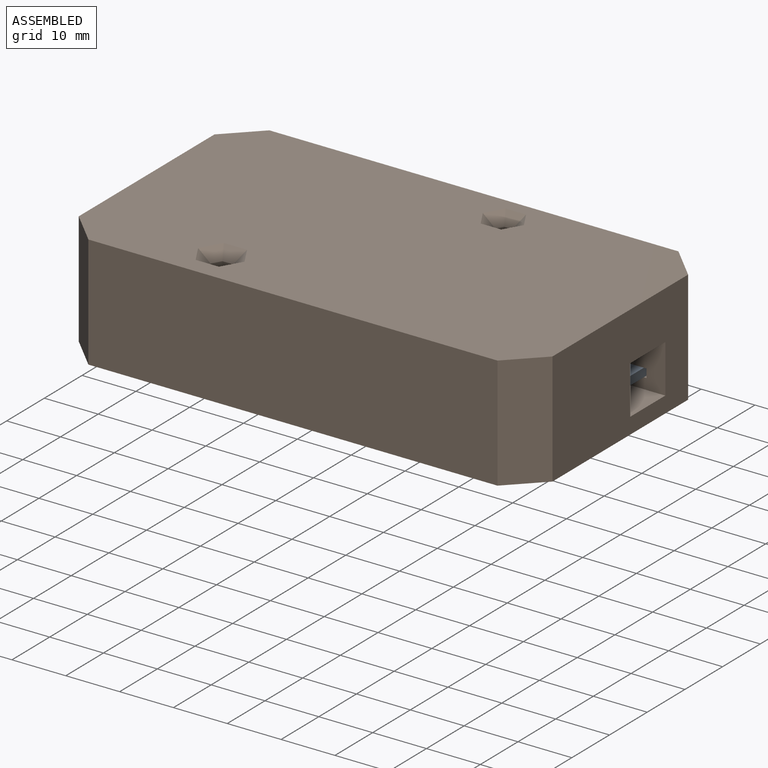
[diagram: assembled view]
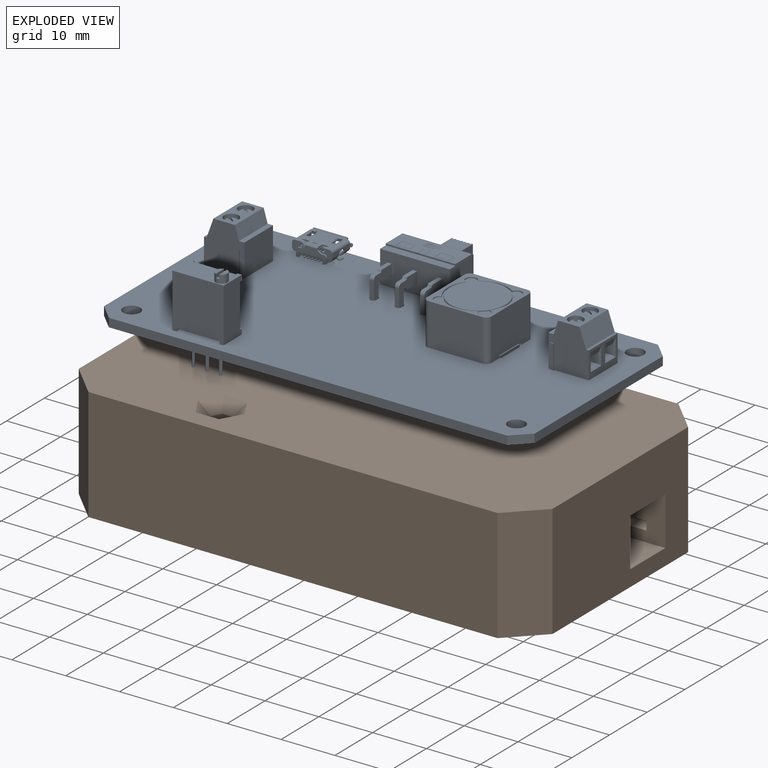
[diagram: exploded view]
GUIDED TOUR — FREECAD ASSEMBLY "Draft_Enclosure"

This assembly has 2 components, labeled P0..P1 below (a component is one placed body or linked part; the same part can appear more than once), held together by 0 modeled joints plus 1 derived contact edge. A joint is a constraint between two components; its type names the relative motion it leaves free:
  CONTACT — a derived adjacency edge — the two components touch in the source model (clearance under 2% of the assembly's diagonal); it is measured from the geometry, not a modeled constraint.
Axis/direction vectors are unit vectors and 'through' points are millimeter coordinates, both in the assembly's world frame.

MATES
  1. CONTACT "contact_0_1": P0 <-> P1, contact direction (0.000, 0.000, -1.000) through (34.47, -14.78, -1.60) mm (derived from contact, not a modeled constraint)

ASSEMBLY ORDER
  1. P0 — the base component [order heuristic]
  2. P1 [order heuristic]
Order-tag legend:
  [order heuristic] — this assembly is geometrically interlocked (no collision-free removal order exists), so components are listed in mate-graph order; insertion feasibility is not verified.

Of the 2 components, 1 carries a construction recipe — the FreeCAD feature program (sketches with constraints, then the solid features that consume them) that regenerates the part from scratch, quoted from this document or from the linked companion document it references; the rest are supplied as boundary geometry only. The tour below walks the components in assembly order: each is shown spotlighted twice — in the assembled view, then in the exploded view, where a leader line traces a displaced component back to its assembled socket (components that stay in place when exploded have no leader line; saturated green if recipe-attached, orange if geometry-only; every other component desaturated gray) — followed by its recipe or geometry summary and the mates that hold it.
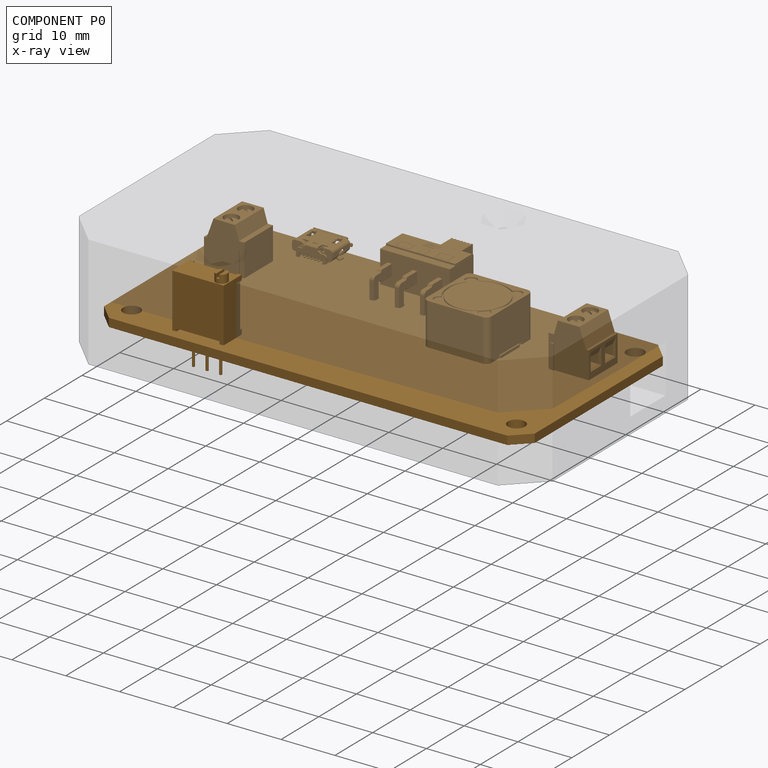
[diagram: component P0 — x-ray view]
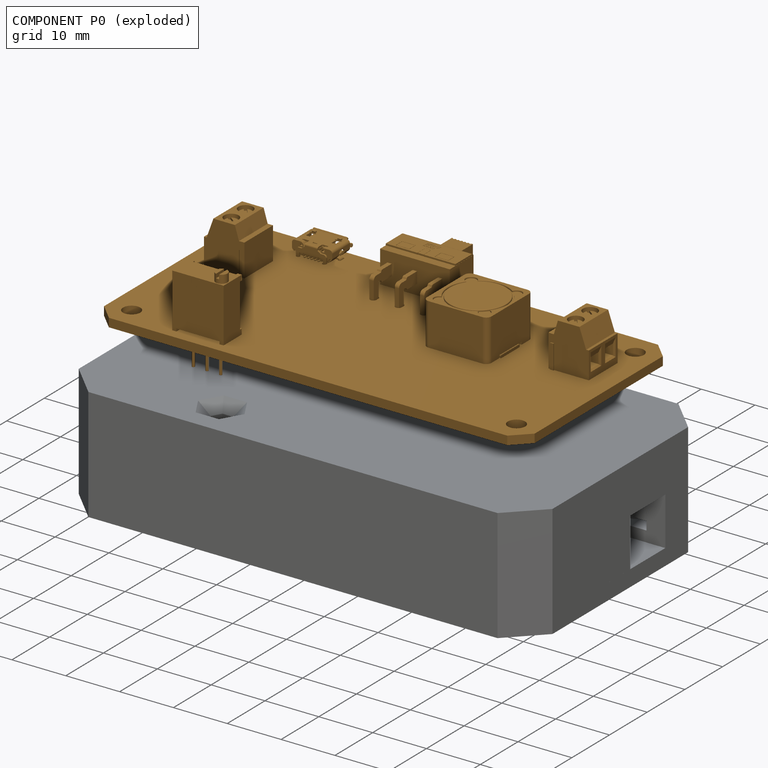
[diagram: component P0 — exploded]
COMPONENT P0 — geometry summary ("BatteryBoost"; no construction recipe available for this part):
  bounding box: 80.0 x 44.3 x 18.0 mm
  tessellated surface: 73,228 triangles
  volume: 7984 mm^3 (13% of its bounding box)
Held by: resting contact with P1 (derived edge).
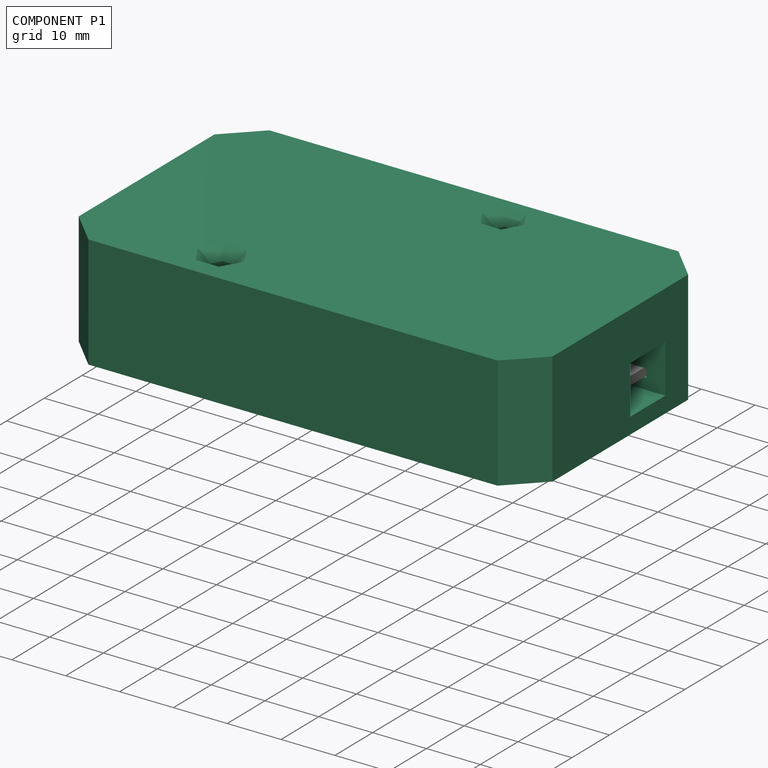
[diagram: component P1 — assembled]
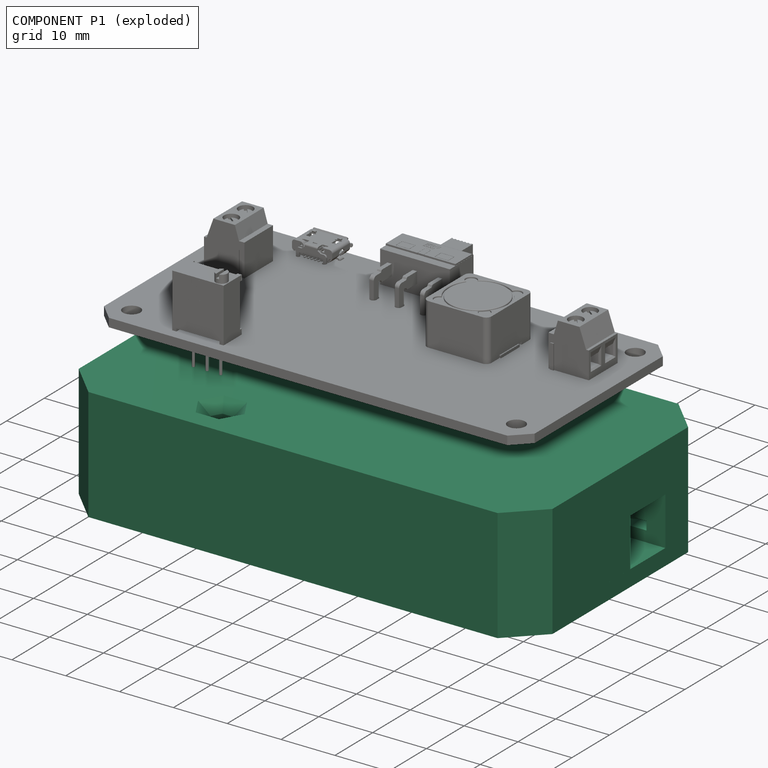
[diagram: component P1 — exploded]
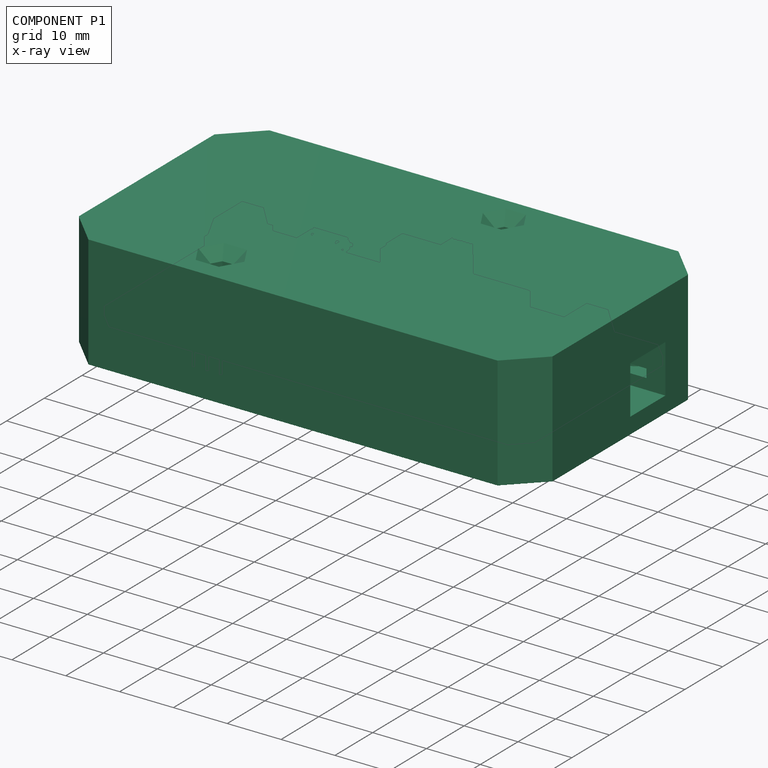
[diagram: component P1 — x-ray view]
COMPONENT P1 — recipe-attached ("Enclosure", modeled in this document).
Held by: resting contact with P0 (derived edge).
Construction recipe (the document's own serialized feature program — sketch geometry with constraints, then the solid features built on it; lengths are millimeters unless a unit is written):

FEATURE [Sketcher::SketchObject] Sketch
  FullyConstrained = true
  MapMode = 5
  Support = -> [XY_Plane010]
  sketch-geometry (4):
    g0: LineSegment StartX=-44 StartY=-24 StartZ=0 EndX=44 EndY=-24 EndZ=0
    g1: LineSegment StartX=44 StartY=-24 StartZ=0 EndX=44 EndY=24 EndZ=0
    g2: LineSegment StartX=44 StartY=24 StartZ=0 EndX=-44 EndY=24 EndZ=0
    g3: LineSegment StartX=-44 StartY=24 StartZ=0 EndX=-44 EndY=-24 EndZ=0
  constraints (10):
    c: Coincident(g0,g1)
    c: Coincident(g1,g2)
    c: Coincident(g2,g3)
    c: Coincident(g3,g0)
    c: Horizontal(g0)
    c: Vertical(g3)
    c: Symmetric(g2,g1,g-2)
    c: Symmetric(g1,g0,g-1)
    c: DistanceX(g0,g0) = 88
    c: DistanceY(g1,g1) = 48
FEATURE [PartDesign::Pad] Pad
  Direction = (1,1,1)
  Length = 3
  Length2 = 100
  Profile = -> Sketch
  Type = 0
FEATURE [Sketcher::SketchObject] Sketch001
  ExternalGeometry = -> [Pad]
  FullyConstrained = true
  MapMode = 5
  Placement = pos=(0,0,3) rot=(0,0,1;0rad)
  Support = -> [Pad]
  sketch-geometry (8):
    g0: LineSegment StartX=-44 StartY=24 StartZ=0 EndX=44 EndY=24 EndZ=0
    g1: LineSegment StartX=44 StartY=24 StartZ=0 EndX=44 EndY=-24 EndZ=0
    g2: LineSegment StartX=44 StartY=-24 StartZ=0 EndX=-44 EndY=-24 EndZ=0
    g3: LineSegment StartX=-44 StartY=-24 StartZ=0 EndX=-44 EndY=24 EndZ=0
    g4: LineSegment StartX=-40.5 StartY=20.5 StartZ=0 EndX=40.5 EndY=20.5 EndZ=0
    g5: LineSegment StartX=40.5 StartY=20.5 StartZ=0 EndX=40.5 EndY=-20.5 EndZ=0
    g6: LineSegment StartX=40.5 StartY=-20.5 StartZ=0 EndX=-40.5 EndY=-20.5 EndZ=0
    g7: LineSegment StartX=-40.5 StartY=-20.5 StartZ=0 EndX=-40.5 EndY=20.5 EndZ=0
  constraints (21):
    c: Coincident(g0,g1)
    c: Coincident(g1,g2)
    c: Coincident(g2,g3)
    c: Coincident(g3,g0)
    c: Horizontal(g0)
    c: Horizontal(g2)
    c: Vertical(g1)
    c: Vertical(g3)
    c: Equal(g-3,g0)
    c: Coincident(g-3,g0)
    c: Equal(g1,g-4)
    c: Coincident(g4,g5)
    c: Coincident(g5,g6)
    c: Coincident(g6,g7)
    c: Coincident(g7,g4)
    c: Horizontal(g6)
    c: Vertical(g5)
    c: Symmetric(g4,g6,g-1)
    c: Symmetric(g4,g4,g-2)
    c: DistanceX(g4,g4) = 81
    c: DistanceY(g7,g7) = 41
FEATURE [PartDesign::Pad] Pad001
  BaseFeature = -> Pad
  Direction = (1,1,1)
  Length = 15
  Length2 = 100
  Profile = -> Sketch001
  Type = 0
FEATURE [Sketcher::SketchObject] Sketch002
  ExternalGeometry = -> [Pad001]
  FullyConstrained = false
  MapMode = 5
  Placement = pos=(0,0,3) rot=(0,0,1;0rad)
  Support = -> [Pad001]
  sketch-geometry (10):
    g0: LineSegment StartX=-31.9645 StartY=15.5 StartZ=0 EndX=-31.9645 EndY=20.5 EndZ=0
    g1: LineSegment StartX=-40.5 StartY=11.9645 StartZ=0 EndX=-35.5 EndY=11.9645 EndZ=0
    g2: LineSegment StartX=-35.5 StartY=11.9645 StartZ=0 EndX=-31.9645 EndY=15.5 EndZ=0
    g3: Circle CenterX=-38 CenterY=18 CenterZ=0 NormalX=0 NormalY=0 NormalZ=1 AngleXU=0 Radius=6.53281
    g4: LineSegment StartX=-40.5 StartY=11.9645 StartZ=0 EndX=-40.5 EndY=20.5 EndZ=0
    g5: LineSegment StartX=-40.5 StartY=20.5 StartZ=0 EndX=-31.9645 EndY=20.5 EndZ=0
    g6: Circle CenterX=-35.75 CenterY=15.75 CenterZ=0 NormalX=0 NormalY=0 NormalZ=1 AngleXU=0 Radius=2
    g7: LineSegment StartX=-39.9824 StartY=20.0201 StartZ=0 EndX=-37.0687 EndY=17.2575 EndZ=0
    g8: LineSegment StartX=-35.904 StartY=12.738 StartZ=0 EndX=-36.7469 EndY=15.9243 EndZ=0
    g9: LineSegment StartX=-32.6433 StartY=15.7056 StartZ=0 EndX=-36.0445 EndY=16.1423 EndZ=0
  constraints (20):
    c: Coincident(g1,g2)
    c: Coincident(g2,g0)
    c: Equal(g0,g1)
    c: Equal(g0,g2)
    c: PointOnObject(g0,g3)
    c: PointOnObject(g1,g3)
    c: PointOnObject(g1,g3)
    c: PointOnObject(g2,g3)
    c: PointOnObject(g0,g-3)
    c: PointOnObject(g1,g-4)
    c: Vertical(g0)
    c: Horizontal(g1)
    c: DistanceY(g0,g0) = 5
    c: Coincident(g4,g5)
    c: Coincident(g5,g0)
    c: Coincident(g4,g1)
    c: Coincident(g-4,g4)
    c: Diameter(g6) = 4
    c: DistanceX(g6,g-1) = 35.75
    c: DistanceY(g-1,g6) = 15.75
FEATURE [PartDesign::Pad] Pad002
  BaseFeature = -> Pad001
  Direction = (1,1,1)
  Length = 11.4
  Length2 = 100
  Profile = -> Sketch002
  Type = 0
FEATURE [PartDesign::Mirrored] Mirrored
  MirrorPlane = -> Sketch002 [V_Axis]
FEATURE [PartDesign::Mirrored] Mirrored001
  MirrorPlane = -> Sketch002 [H_Axis]
FEATURE [PartDesign::MultiTransform] MultiTransform
  BaseFeature = -> Pad002
  Originals = -> [Pad002]
  Transformations = -> [Mirrored,Mirrored001]
FEATURE [Sketcher::SketchObject] Sketch003
  ExternalGeometry = -> [MultiTransform]
  FullyConstrained = false
  MapMode = 5
  Placement = pos=(-44,0,0) rot=(0.57735,-0.57735,-0.57735;2.0944rad)
  Support = -> [MultiTransform]
  sketch-geometry (4):
    g0: LineSegment StartX=2.65431 StartY=18 StartZ=0 EndX=11.9479 EndY=18 EndZ=0
    g1: LineSegment StartX=11.9479 StartY=18 StartZ=0 EndX=11.9479 EndY=9.0159 EndZ=0
    g2: LineSegment StartX=11.9479 StartY=9.0159 StartZ=0 EndX=2.65431 EndY=9.0159 EndZ=0
    g3: LineSegment StartX=2.65431 StartY=9.0159 StartZ=0 EndX=2.65431 EndY=18 EndZ=0
  constraints (9):
    c: Coincident(g0,g1)
    c: Coincident(g1,g2)
    c: Coincident(g2,g3)
    c: Coincident(g3,g0)
    c: Horizontal(g0)
    c: Horizontal(g2)
    c: Vertical(g1)
    c: Vertical(g3)
    c: PointOnObject(g0,g-3)
FEATURE [PartDesign::Pocket] Pocket
  BaseFeature = -> MultiTransform
  Length = 5
  Length2 = 100
  Profile = -> Sketch003
  Type = 0
FEATURE [PartDesign::Mirrored] Mirrored002
  BaseFeature = -> Pocket
  MirrorPlane = -> YZ_Plane010
  Originals = -> [Pocket]
FEATURE [Sketcher::SketchObject] Sketch004
  ExternalGeometry = -> [Mirrored002]
  FullyConstrained = false
  MapMode = 5
  Placement = pos=(0,-24,0) rot=(1,0,0;1.5708rad)
  Support = -> [Mirrored002]
  sketch-geometry (4):
    g0: LineSegment StartX=-7.23893 StartY=18 StartZ=0 EndX=0.861068 EndY=18 EndZ=0
    g1: LineSegment StartX=0.861068 StartY=18 StartZ=0 EndX=0.861068 EndY=8.5 EndZ=0
    g2: LineSegment StartX=0.861068 StartY=8.5 StartZ=0 EndX=-7.23893 EndY=8.5 EndZ=0
    g3: LineSegment StartX=-7.23893 StartY=8.5 StartZ=0 EndX=-7.23893 EndY=18 EndZ=0
  constraints (11):
    c: Coincident(g0,g1)
    c: Coincident(g1,g2)
    c: Coincident(g2,g3)
    c: Coincident(g3,g0)
    c: Horizontal(g0)
    c: Horizontal(g2)
    c: Vertical(g1)
    c: Vertical(g3)
    c: PointOnObject(g0,g-3)
    c: DistanceX(g0,g0) = 8.1
    c: DistanceY(g1,g1) = 9.5
FEATURE [PartDesign::Pocket] Pocket001
  BaseFeature = -> Mirrored002
  Length = 5
  Length2 = 100
  Profile = -> Sketch004
  Type = 0
FEATURE [PartDesign::Chamfer] Chamfer
  Angle = 18
  Base = -> Pocket001 [Edge16,Edge14]
  BaseFeature = -> Pocket001
  ChamferType = 2
  FlipDirection = false
  Size = 7
  Size2 = 1
  SupportTransform = false
FEATURE [PartDesign::Chamfer] Chamfer001
  Angle = 30
  Base = -> Chamfer [Edge6,Edge4,Edge8]
  BaseFeature = -> Chamfer
  ChamferType = 2
  FlipDirection = false
  Size = 4
  Size2 = 1
  SupportTransform = false
FEATURE [Sketcher::SketchObject] Sketch005
  ExternalGeometry = -> [Chamfer001]
  FullyConstrained = false
  MapMode = 5
  Placement = pos=(0,-24,0) rot=(1,0,0;1.5708rad)
  Support = -> [Chamfer001]
  sketch-geometry (4):
    g0: LineSegment StartX=-29.1463 StartY=18 StartZ=0 EndX=-18.1463 EndY=18 EndZ=0
    g1: LineSegment StartX=-18.1463 StartY=18 StartZ=0 EndX=-18.1463 EndY=11 EndZ=0
    g2: LineSegment StartX=-18.1463 StartY=11 StartZ=0 EndX=-29.1463 EndY=11 EndZ=0
    g3: LineSegment StartX=-29.1463 StartY=11 StartZ=0 EndX=-29.1463 EndY=18 EndZ=0
  constraints (11):
    c: Coincident(g0,g1)
    c: Coincident(g1,g2)
    c: Coincident(g2,g3)
    c: Coincident(g3,g0)
    c: Horizontal(g0)
    c: Horizontal(g2)
    c: Vertical(g1)
    c: Vertical(g3)
    c: PointOnObject(g0,g-3)
    c: DistanceX(g2,g2) = 11
    c: DistanceY(g1,g1) = 7
FEATURE [PartDesign::Pocket] Pocket002
  BaseFeature = -> Chamfer001
  Length = 5
  Length2 = 100
  Profile = -> Sketch005
  Type = 0
FEATURE [PartDesign::Chamfer] Chamfer002
  Angle = 60
  Base = -> Pocket002 [Edge11,Edge12,Edge10]
  BaseFeature = -> Pocket002
  ChamferType = 2
  FlipDirection = false
  Size = 1.5
  Size2 = 1
  SupportTransform = false
FEATURE [Sketcher::SketchObject] Sketch006
  ExternalGeometry = -> [Chamfer002]
  FullyConstrained = true
  MapMode = 5
  Placement = pos=(0,0,14.4) rot=(0,0,1;0rad)
  Support = -> [Chamfer002]
  sketch-geometry (3):
    g0: LineSegment StartX=-40.5 StartY=20.5 StartZ=0 EndX=-40.5 EndY=17 EndZ=0
    g1: LineSegment StartX=-40.5 StartY=17 StartZ=0 EndX=-37 EndY=20.5 EndZ=0
    g2: LineSegment StartX=-37 StartY=20.5 StartZ=0 EndX=-40.5 EndY=20.5 EndZ=0
  constraints (8):
    c: Vertical(g0)
    c: Coincident(g0,g1)
    c: Coincident(g1,g2)
    c: Coincident(g0,g2)
    c: Coincident(g0,g-4)
    c: PointOnObject(g1,g-3)
    c: Angle(g2,g1) = 0.785398
    c: DistanceX(g2,g2) = 3.5
FEATURE [PartDesign::Pad] Pad003
  BaseFeature = -> Chamfer002
  Direction = (1,1,1)
  Length = 1.6
  Length2 = 100
  Profile = -> Sketch006
  Type = 0
FEATURE [PartDesign::Mirrored] Mirrored003
  MirrorPlane = -> Sketch006 [V_Axis]
FEATURE [PartDesign::Mirrored] Mirrored004
  MirrorPlane = -> Sketch006 [H_Axis]
FEATURE [PartDesign::MultiTransform] MultiTransform001
  BaseFeature = -> Pad003
  Originals = -> [Pad003]
  Transformations = -> [Mirrored003,Mirrored004]
FEATURE [Sketcher::SketchObject] Sketch007
  FullyConstrained = false
  MapMode = 5
  Placement = pos=(0,0,0) rot=(1,0,0;3.14159rad)
  Support = -> [MultiTransform001]
  sketch-geometry (8):
    g0: LineSegment StartX=-16.2674 StartY=-16.9218 StartZ=0 EndX=-17.2674 EndY=-15.1897 EndZ=0
    g1: LineSegment StartX=-17.2674 StartY=-15.1897 StartZ=0 EndX=-19.2674 EndY=-15.1897 EndZ=0
    g2: LineSegment StartX=-19.2674 StartY=-15.1897 StartZ=0 EndX=-20.2674 EndY=-16.9218 EndZ=0
    g3: LineSegment StartX=-20.2674 StartY=-16.9218 StartZ=0 EndX=-19.2674 EndY=-18.6538 EndZ=0
    g4: LineSegment StartX=-19.2674 StartY=-18.6538 StartZ=0 EndX=-17.2674 EndY=-18.6538 EndZ=0
    g5: LineSegment StartX=-17.2674 StartY=-18.6538 StartZ=0 EndX=-16.2674 EndY=-16.9218 EndZ=0
    g6: Circle CenterX=-18.2674 CenterY=-16.9218 CenterZ=0 NormalX=0 NormalY=0 NormalZ=1 AngleXU=0 Radius=2
    g7: LineSegment StartX=-20.2674 StartY=-16.9218 StartZ=0 EndX=-16.2674 EndY=-16.9218 EndZ=0
  constraints (17):
    c: Coincident(g0,g1)
    c: Coincident(g1,g2)
    c: Coincident(g2,g3)
    c: Coincident(g3,g4)
    c: Coincident(g4,g5)
    c: Coincident(g5,g0)
    c: Equal(g0, g1-g5) x5
    c: PointOnObject(g0,g6)
    c: PointOnObject(g1,g6)
    c: PointOnObject(g2,g6)
    c: PointOnObject(g3,g6)
    c: PointOnObject(g4,g6)
    c: PointOnObject(g5,g6)
    c: Coincident(g7,g2)
    c: Coincident(g7,g0)
    c: Horizontal(g7)
    c: DistanceX(g1,g1) = 2
FEATURE [PartDesign::Pocket] Pocket003
  BaseFeature = -> MultiTransform001
  Length = 5
  Length2 = 100
  Profile = -> Sketch007
  Type = 0
FEATURE [PartDesign::Chamfer] Chamfer003
  Angle = 45
  Base = -> Pocket003 [Edge111,Edge112,Edge107,Edge108,Edge109,Edge110]
  BaseFeature = -> Pocket003
  ChamferType = 0
  FlipDirection = false
  Size = 2
  Size2 = 1
  SupportTransform = false
FEATURE [Sketcher::SketchObject] Sketch008
  FullyConstrained = true
  MapMode = 5
  Placement = pos=(0,0,0) rot=(1,0,0;3.14159rad)
  Support = -> [Chamfer003]
  sketch-geometry (8):
    g0: GeomPoint X=9.5 Y=18.25 Z=0
    g1: LineSegment StartX=11 StartY=18.25 StartZ=0 EndX=10.25 EndY=19.549 EndZ=0
    g2: LineSegment StartX=10.25 StartY=19.549 StartZ=0 EndX=8.75 EndY=19.549 EndZ=0
    g3: LineSegment StartX=8.75 StartY=19.549 StartZ=0 EndX=8 EndY=18.25 EndZ=0
    g4: LineSegment StartX=8 StartY=18.25 StartZ=0 EndX=8.75 EndY=16.951 EndZ=0
    g5: LineSegment StartX=8.75 StartY=16.951 StartZ=0 EndX=10.25 EndY=16.951 EndZ=0
    g6: LineSegment StartX=10.25 StartY=16.951 StartZ=0 EndX=11 EndY=18.25 EndZ=0
    g7: Circle CenterX=9.5 CenterY=18.25 CenterZ=0 NormalX=0 NormalY=0 NormalZ=1 AngleXU=0 Radius=1.5
  constraints (18):
    c: DistanceX(g-1,g0) = 9.5
    c: DistanceY(g-1,g0) = 18.25
    c: Coincident(g1,g2)
    c: Coincident(g2,g3)
    c: Coincident(g3,g4)
    c: Coincident(g4,g5)
    c: Coincident(g5,g6)
    c: Coincident(g6,g1)
    c: Equal(g1, g2-g6) x5
    c: PointOnObject(g1,g7)
    c: PointOnObject(g2,g7)
    c: PointOnObject(g3,g7)
    c: PointOnObject(g4,g7)
    c: PointOnObject(g5,g7)
    c: PointOnObject(g6,g7)
    c: Coincident(g7,g0)
    c: Horizontal(g1,g0)
    c: DistanceX(g2,g2) = 1.5
FEATURE [PartDesign::Pocket] Pocket004
  BaseFeature = -> Chamfer003
  Length = 5
  Length2 = 100
  Profile = -> Sketch008
  Type = 0
FEATURE [PartDesign::Chamfer] Chamfer004
  Angle = 45
  Base = -> Pocket004 [Edge9,Edge8,Edge7,Edge6,Edge5,Edge10]
  BaseFeature = -> Pocket004
  ChamferType = 0
  FlipDirection = false
  Size = 2
  Size2 = 1
  SupportTransform = false
FEATURE [Sketcher::SketchObject] Sketch009
  ExternalGeometry = -> [Chamfer004]
  FullyConstrained = true
  MapMode = 5
  Placement = pos=(-44,0,0) rot=(0.57735,-0.57735,-0.57735;2.0944rad)
  Support = -> [Chamfer004]
  sketch-geometry (4):
    g0: LineSegment StartX=2.65431 StartY=18 StartZ=0 EndX=-9.34569 EndY=18 EndZ=0
    g1: LineSegment StartX=-9.34569 StartY=18 StartZ=0 EndX=-9.34569 EndY=12 EndZ=0
    g2: LineSegment StartX=-9.34569 StartY=12 StartZ=0 EndX=2.65431 EndY=12 EndZ=0
    g3: LineSegment StartX=2.65431 StartY=12 StartZ=0 EndX=2.65431 EndY=18 EndZ=0
  constraints (11):
    c: Coincident(g0,g1)
    c: Coincident(g1,g2)
    c: Coincident(g2,g3)
    c: Coincident(g3,g0)
    c: Horizontal(g0)
    c: Horizontal(g2)
    c: Vertical(g1)
    c: Vertical(g3)
    c: Coincident(g0,g-4)
    c: DistanceX(g2,g2) = 12
    c: DistanceY(g1,g1) = 6
FEATURE [PartDesign::Pocket] Pocket005
  BaseFeature = -> Chamfer004
  Length = 5
  Length2 = 100
  Profile = -> Sketch009
  Type = 0
FEATURE [PartDesign::Chamfer] Chamfer005
  Angle = 60
  Base = -> Pocket005 [Edge77]
  BaseFeature = -> Pocket005
  ChamferType = 2
  FlipDirection = false
  Size = 2
  Size2 = 1
  SupportTransform = false
FEATURE [Sketcher::SketchObject] Sketch010
  ExternalGeometry = -> [Chamfer005]
  FullyConstrained = true
  MapMode = 5
  Placement = pos=(0,0,0) rot=(1,0,0;3.14159rad)
  Support = -> [Chamfer005]
  sketch-geometry (3):
    g0: LineSegment StartX=38 StartY=24 StartZ=0 EndX=44 EndY=24 EndZ=0
    g1: LineSegment StartX=44 StartY=24 StartZ=0 EndX=44 EndY=18 EndZ=0
    g2: LineSegment StartX=44 StartY=18 StartZ=0 EndX=38 EndY=24 EndZ=0
  constraints (8):
    c: Horizontal(g0)
    c: Coincident(g0,g1)
    c: Coincident(g1,g2)
    c: Coincident(g2,g0)
    c: PointOnObject(g1,g-4)
    c: Coincident(g0,g-4)
    c: Equal(g0,g1)
    c: DistanceX(g0,g0) = 6
FEATURE [PartDesign::Pocket] Pocket006
  BaseFeature = -> Chamfer005
  Length = 5
  Length2 = 100
  Profile = -> Sketch010
  Type = 1
FEATURE [PartDesign::Mirrored] Mirrored005
  MirrorPlane = -> Sketch010 [V_Axis]
FEATURE [PartDesign::Mirrored] Mirrored006
  MirrorPlane = -> Sketch010 [H_Axis]
FEATURE [PartDesign::MultiTransform] MultiTransform002
  BaseFeature = -> Pocket006
  Originals = -> [Pocket006]
  Transformations = -> [Mirrored005,Mirrored006]
FEATURE [PartDesign::Body] Body
  Group = -> [Sketch,Pad,Sketch001,Pad001,Sketch002,Pad002,MultiTransform,Mirrored,Mirrored001,Sketch003,Pocket,Mirrored002,Sketch004,Pocket001,Chamfer,Chamfer001,Sketch005,Pocket002,Chamfer002,Sketch006,Pad003,MultiTransform001,Mirrored003,Mirrored004,Sketch007,Pocket003,Chamfer003,Sketch008,Pocket004,Chamfer004,Sketch009,Pocket005,Chamfer005,Sketch010,Pocket006,MultiTransform002,Mirrored005,Mirrored006,+5 more]
  Origin = -> Origin010
  Placement = pos=(0,3e-15,19.4) rot=(1,0,0;3.14159rad)
  Tip = -> MultiTransform003
FEATURE [Sketcher::SketchObject] Sketch012
  FullyConstrained = true
  MapMode = 5
  Support = -> [XY_Plane011]
  sketch-geometry (4):
    g0: LineSegment StartX=-44 StartY=24 StartZ=0 EndX=44 EndY=24 EndZ=0
    g1: LineSegment StartX=44 StartY=24 StartZ=0 EndX=44 EndY=-24 EndZ=0
    g2: LineSegment StartX=44 StartY=-24 StartZ=0 EndX=-44 EndY=-24 EndZ=0
    g3: LineSegment StartX=-44 StartY=-24 StartZ=0 EndX=-44 EndY=24 EndZ=0
  constraints (10):
    c: Coincident(g0,g1)
    c: Coincident(g1,g2)
    c: Coincident(g2,g3)
    c: Coincident(g3,g0)
    c: Horizontal(g2)
    c: Vertical(g3)
    c: Symmetric(g0,g0,g-2)
    c: Symmetric(g0,g1,g-1)
    c: DistanceX(g0,g0) = 88
    c: DistanceY(g1,g1) = 48
FEATURE [PartDesign::Pad] Pad005
  Direction = (1,1,1)
  Length = 4
  Length2 = 100
  Profile = -> Sketch012
  Type = 0
FEATURE [Sketcher::SketchObject] Sketch013
  FullyConstrained = true
  MapMode = 5
  Placement = pos=(0,0,4) rot=(0,0,1;0rad)
  Support = -> [Pad005]
  sketch-geometry (4):
    g0: LineSegment StartX=-40.5 StartY=20.5 StartZ=0 EndX=40.5 EndY=20.5 EndZ=0
    g1: LineSegment StartX=40.5 StartY=20.5 StartZ=0 EndX=40.5 EndY=-20.5 EndZ=0
    g2: LineSegment StartX=40.5 StartY=-20.5 StartZ=0 EndX=-40.5 EndY=-20.5 EndZ=0
    g3: LineSegment StartX=-40.5 StartY=-20.5 StartZ=0 EndX=-40.5 EndY=20.5 EndZ=0
  constraints (10):
    c: Coincident(g0,g1)
    c: Coincident(g1,g2)
    c: Coincident(g2,g3)
    c: Coincident(g3,g0)
    c: Horizontal(g2)
    c: Vertical(g3)
    c: Symmetric(g1,g0,g-1)
    c: Symmetric(g0,g0,g-2)
    c: DistanceX(g0,g0) = 81
    c: DistanceY(g1,g1) = 41
FEATURE [PartDesign::Pad] Pad006
  BaseFeature = -> Pad005
  Direction = (1,1,1)
  Length = 2
  Length2 = 100
  Profile = -> Sketch013
  Type = 0
FEATURE [Sketcher::SketchObject] Sketch014
  ExternalGeometry = -> [Pad006]
  FullyConstrained = true
  MapMode = 5
  Placement = pos=(0,0,6) rot=(0,0,1;0rad)
  Support = -> [Pad006]
  sketch-geometry (7):
    g0: LineSegment StartX=0 StartY=0 StartZ=0 EndX=-40.5 EndY=0 EndZ=0
    g1: LineSegment StartX=-40.5 StartY=0 StartZ=0 EndX=-40.5 EndY=11.9645 EndZ=0
    g2: LineSegment StartX=-31.9645 StartY=20.5 StartZ=0 EndX=0 EndY=20.5 EndZ=0
    g3: LineSegment StartX=0 StartY=20.5 StartZ=0 EndX=0 EndY=0 EndZ=0
    g4: LineSegment StartX=-40.5 StartY=11.9645 StartZ=0 EndX=-35.5 EndY=11.9645 EndZ=0
    g5: LineSegment StartX=-35.5 StartY=11.9645 StartZ=0 EndX=-31.9645 EndY=15.5 EndZ=0
    g6: LineSegment StartX=-31.9645 StartY=15.5 StartZ=0 EndX=-31.9645 EndY=20.5 EndZ=0
  constraints (20):
    c: Coincident(g-1,g0)
    c: PointOnObject(g0,g-4)
    c: Horizontal(g0)
    c: Coincident(g0,g1)
    c: PointOnObject(g1,g-4)
    c: PointOnObject(g2,g-3)
    c: PointOnObject(g2,g-3)
    c: Coincident(g2,g3)
    c: Coincident(g3,g0)
    c: Vertical(g3)
    c: Coincident(g1,g4)
    c: Horizontal(g4)
    c: Coincident(g4,g5)
    c: Coincident(g5,g6)
    c: Vertical(g6)
    c: Coincident(g6,g2)
    c: Equal(g6,g4)
    c: Equal(g5,g6)
    c: Angle(g6,g5) = 2.35619
    c: DistanceY(g6,g6) = 5
FEATURE [PartDesign::Pocket] Pocket007
  BaseFeature = -> Pad006
  Length = 2
  Length2 = 100
  Profile = -> Sketch014
  Type = 0
FEATURE [PartDesign::Mirrored] Mirrored009
  MirrorPlane = -> Sketch014 [V_Axis]
FEATURE [PartDesign::Mirrored] Mirrored010
  MirrorPlane = -> Sketch014 [H_Axis]
FEATURE [PartDesign::MultiTransform] MultiTransform004
  BaseFeature = -> Pocket007
  Originals = -> [Pocket007]
  Transformations = -> [Mirrored009,Mirrored010]
FEATURE [Sketcher::SketchObject] Sketch015
  ExternalGeometry = -> [MultiTransform004]
  FullyConstrained = true
  MapMode = 5
  Placement = pos=(0,0,6) rot=(0,0,1;0rad)
  Support = -> [MultiTransform004]
  sketch-geometry (3):
    g0: LineSegment StartX=-40.5 StartY=17.5 StartZ=0 EndX=-40.5 EndY=20.5 EndZ=0
    g1: LineSegment StartX=-40.5 StartY=20.5 StartZ=0 EndX=-37.5 EndY=20.5 EndZ=0
    g2: LineSegment StartX=-37.5 StartY=20.5 StartZ=0 EndX=-40.5 EndY=17.5 EndZ=0
  constraints (8):
    c: PointOnObject(g0,g-4)
    c: Coincident(g0,g-4)
    c: Coincident(g0,g1)
    c: PointOnObject(g1,g-3)
    c: Coincident(g1,g2)
    c: Coincident(g2,g0)
    c: Equal(g1,g0)
    c: DistanceX(g1,g1) = 3
FEATURE [PartDesign::Pocket] Pocket008
  BaseFeature = -> MultiTransform004
  Length = 0
  Length2 = 100
  Profile = -> Sketch015
  Type = 3
  UpToFace = -> MultiTransform004 [Face5]
FEATURE [Sketcher::SketchObject] Sketch016
  FullyConstrained = true
  MapMode = 5
  Placement = pos=(0,0,0) rot=(1,0,0;3.14159rad)
  Support = -> [Pocket008]
  sketch-geometry (1):
    g0: Circle CenterX=-35.75 CenterY=15.75 CenterZ=0 NormalX=0 NormalY=0 NormalZ=1 AngleXU=0 Radius=1.6
  constraints (3):
    c: DistanceX(g0,g-1) = 35.75
    c: DistanceY(g-1,g0) = 15.75
    c: Diameter(g0) = 3.2
FEATURE [PartDesign::Pocket] Pocket009
  BaseFeature = -> Pocket008
  Length = 5
  Length2 = 100
  Profile = -> Sketch016
  Type = 1
FEATURE [PartDesign::Mirrored] Mirrored011
  MirrorPlane = -> Sketch016 [V_Axis]
FEATURE [PartDesign::Mirrored] Mirrored012
  MirrorPlane = -> Sketch016 [H_Axis]
FEATURE [PartDesign::MultiTransform] MultiTransform005
  BaseFeature = -> Pocket009
  Originals = -> [Pocket009]
  Transformations = -> [Mirrored011,Mirrored012]
FEATURE [Sketcher::SketchObject] Sketch017
  FullyConstrained = true
  MapMode = 5
  Placement = pos=(0,0,0) rot=(1,0,0;3.14159rad)
  Support = -> [MultiTransform005]
  sketch-geometry (1):
    g0: Circle CenterX=-35.75 CenterY=15.75 CenterZ=0 NormalX=0 NormalY=0 NormalZ=1 AngleXU=0 Radius=4
  constraints (3):
    c: DistanceX(g0,g-1) = 35.75
    c: DistanceY(g-1,g0) = 15.75
    c: Diameter(g0) = 8
FEATURE [PartDesign::Pocket] Pocket010
  BaseFeature = -> MultiTransform005
  Length = 3
  Length2 = 100
  Profile = -> Sketch017
  Type = 0
FEATURE [PartDesign::Mirrored] Mirrored013
  MirrorPlane = -> Sketch017 [V_Axis]
FEATURE [PartDesign::Mirrored] Mirrored014
  MirrorPlane = -> Sketch017 [H_Axis]
FEATURE [PartDesign::MultiTransform] MultiTransform006
  BaseFeature = -> Pocket010
  Originals = -> [Pocket010]
  Transformations = -> [Mirrored013,Mirrored014]
FEATURE [Sketcher::SketchObject] Sketch018
  FullyConstrained = false
  MapMode = 5
  Placement = pos=(0,0,0) rot=(1,0,0;3.14159rad)
  Support = -> [MultiTransform006]
  sketch-geometry (4):
    g0: LineSegment StartX=-50.6389 StartY=-28.4485 StartZ=0 EndX=49.7036 EndY=-28.4485 EndZ=0
    g1: LineSegment StartX=49.7036 StartY=-28.4485 StartZ=0 EndX=49.7036 EndY=29.2485 EndZ=0
    g2: LineSegment StartX=49.7036 StartY=29.2485 StartZ=0 EndX=-50.6389 EndY=29.2485 EndZ=0
    g3: LineSegment StartX=-50.6389 StartY=29.2485 StartZ=0 EndX=-50.6389 EndY=-28.4485 EndZ=0
  constraints (8):
    c: Coincident(g0,g1)
    c: Coincident(g1,g2)
    c: Coincident(g2,g3)
    c: Coincident(g3,g0)
    c: Horizontal(g0)
    c: Horizontal(g2)
    c: Vertical(g1)
    c: Vertical(g3)
FEATURE [PartDesign::Pocket] Pocket011
  BaseFeature = -> MultiTransform006
  Length = 1
  Length2 = 100
  Profile = -> Sketch018
  Type = 0
FEATURE [Sketcher::SketchObject] Sketch019
  ExternalGeometry = -> [Pocket011]
  FullyConstrained = true
  MapMode = 5
  Placement = pos=(0,0,1) rot=(1,0,0;3.14159rad)
  Support = -> [Pocket011]
  sketch-geometry (3):
    g0: LineSegment StartX=-44 StartY=18 StartZ=0 EndX=-38 EndY=24 EndZ=0
    g1: LineSegment StartX=-38 StartY=24 StartZ=0 EndX=-44 EndY=24 EndZ=0
    g2: LineSegment StartX=-44 StartY=24 StartZ=0 EndX=-44 EndY=18 EndZ=0
  constraints (8):
    c: Coincident(g0,g1)
    c: Horizontal(g1)
    c: Coincident(g1,g2)
    c: Coincident(g2,g0)
    c: Vertical(g2)
    c: Equal(g1,g2)
    c: DistanceX(g1,g1) = 6
    c: Coincident(g1,g-3)
FEATURE [PartDesign::Pocket] Pocket012
  BaseFeature = -> Pocket011
  Length = 5
  Length2 = 100
  Profile = -> Sketch019
  Type = 1
FEATURE [PartDesign::Mirrored] Mirrored015
  MirrorPlane = -> Sketch019 [V_Axis]
FEATURE [PartDesign::Mirrored] Mirrored016
  MirrorPlane = -> Sketch019 [H_Axis]
FEATURE [PartDesign::MultiTransform] MultiTransform007
  BaseFeature = -> Pocket012
  Originals = -> [Pocket012]
  Transformations = -> [Mirrored015,Mirrored016]
FEATURE [PartDesign::Mirrored] Mirrored017
  MirrorPlane = -> Sketch015 [V_Axis]
FEATURE [PartDesign::Mirrored] Mirrored018
  MirrorPlane = -> Sketch015 [H_Axis]
FEATURE [PartDesign::MultiTransform] MultiTransform008
  BaseFeature = -> MultiTransform007
  Originals = -> [Pocket008]
  Transformations = -> [Mirrored017,Mirrored018]
FEATURE [PartDesign::Body] Body001
  Group = -> [Sketch012,Pad005,Sketch013,Pad006,Sketch014,Pocket007,MultiTransform004,Mirrored009,Mirrored010,Sketch015,Pocket008,Sketch016,Pocket009,MultiTransform005,Mirrored011,Mirrored012,Sketch017,Pocket010,MultiTransform006,Mirrored013,Mirrored014,Sketch018,Pocket011,Sketch019,Pocket012,MultiTransform007,Mirrored015,Mirrored016,MultiTransform008,Mirrored017,Mirrored018]
  Origin = -> Origin011
  Placement = pos=(0,0,-2.6) rot=(0,0,1;0rad)
  Tip = -> MultiTransform008
PROVENANCE & LICENSES
Assembly and component geometry: a FreeCAD (.FCStd) document from a public repository crawl; components, placements and joints were extracted with FreeCAD and each solid tessellated.
Construction recipes: the document's own serialized feature recipes (and, for linked parts, the recipes of companion documents from the same project).
License: other.
Joints: native FreeCAD joints and A2plus constraints are mapped to standard mate types; edges marked 'derived from contact' connect touching components and are measured from the geometry, not modeled.
Verification: 1 of this assembly's 2 components carries a construction recipe (1 from this document itself); the rest are geometry-only. Every component's tessellation passed the extraction mesh gates (mesh-volume checksum against the B-rep where available, bounding-box inflation <= 2%).
Renders: orthographic iso camera (az 35 / el 25); the floor grid conveys scale (grid pitch printed in each image; no ruler). In the exploded view each component is displaced by its stored offset vector: the offsets alone carry the explosion direction (mate normal/axis signs are not orientation cues and do not encode it), and separation distances are assigned per mate-chain, not proportionally to assembly-order depth.
